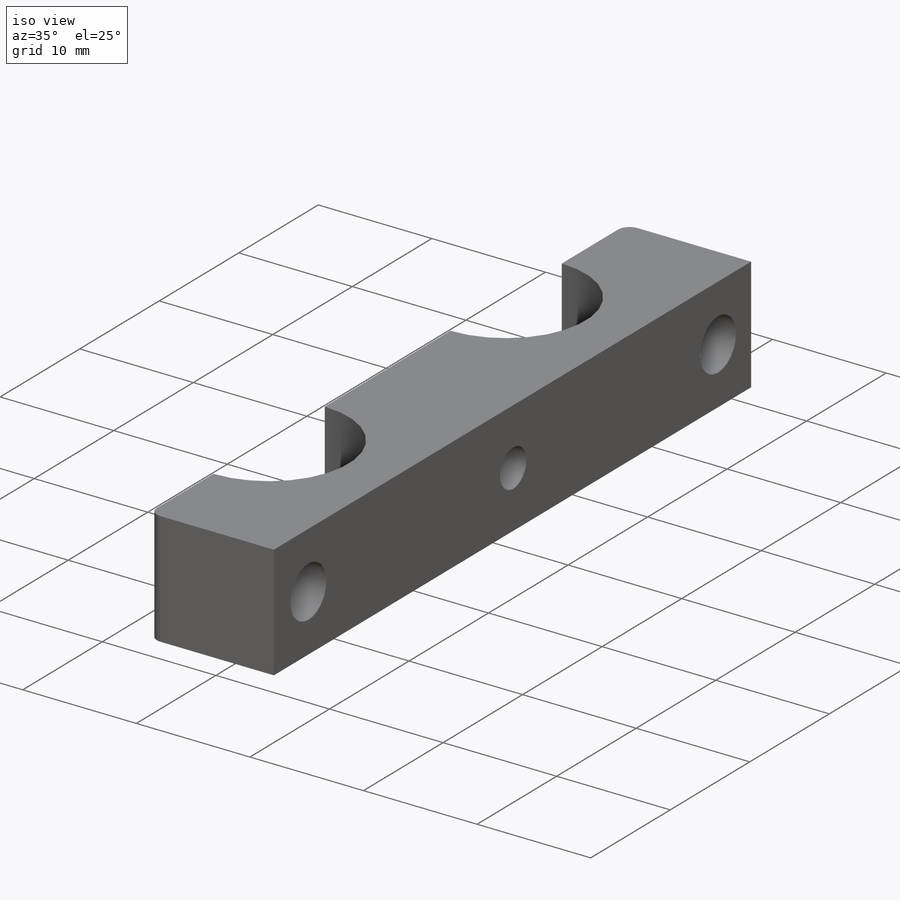
[diagram: iso view]
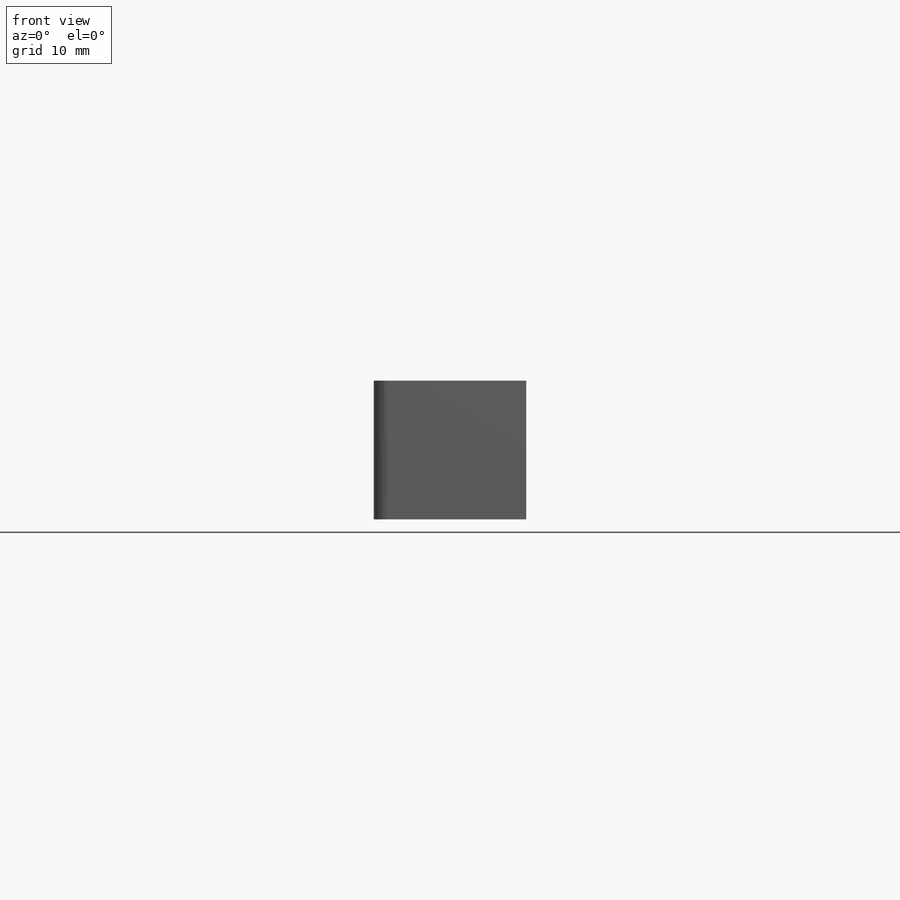
[diagram: front view]
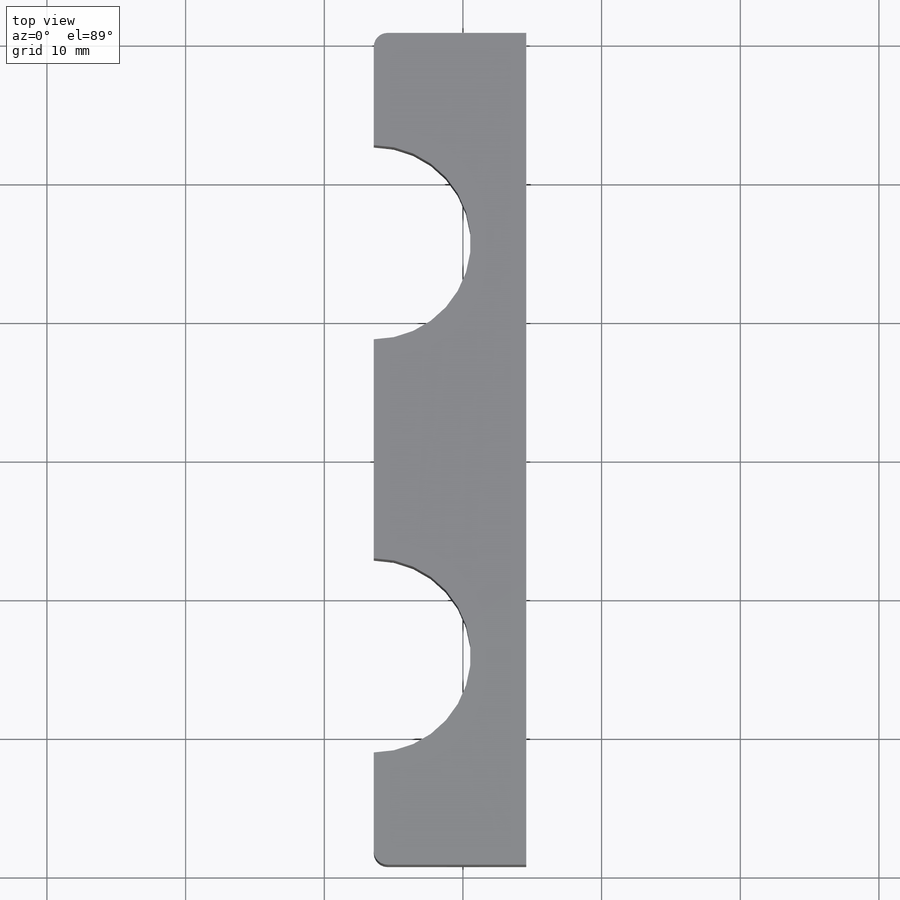
[diagram: top view]
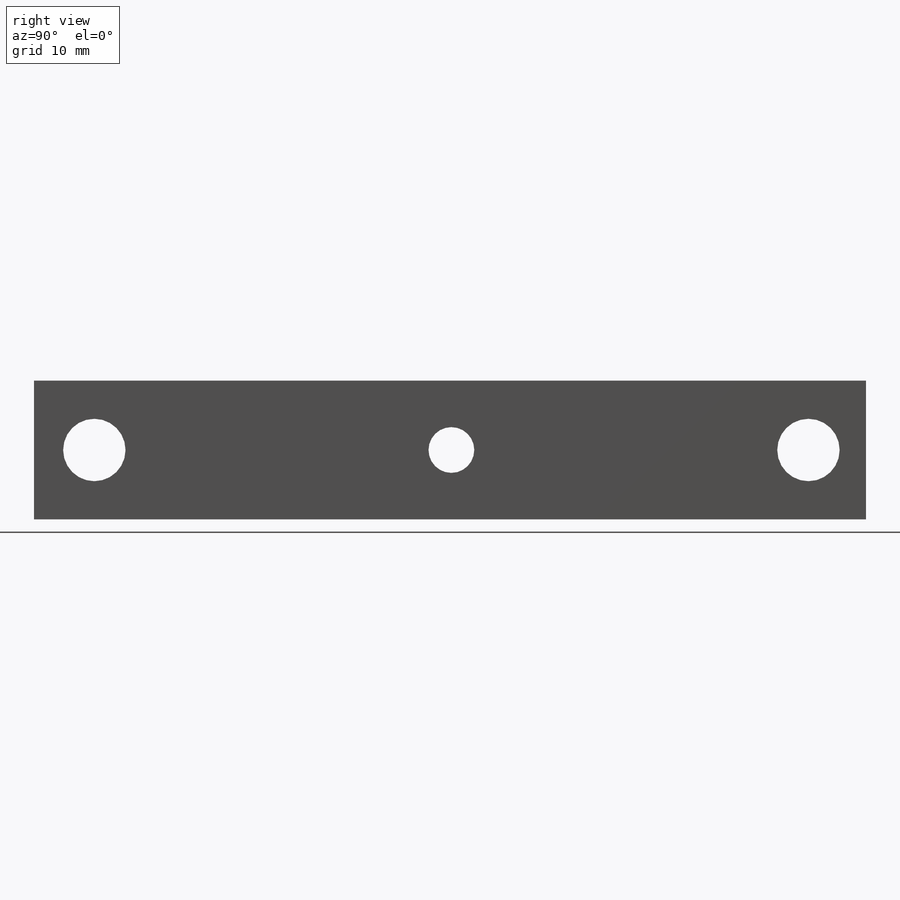
[diagram: right view]
SOLIDWORKS PART (.sldprt)
format: sldprt  version: not decoded by parser v0  size: 386,560 bytes
history: native  units: mm
features: sketch x5, plane x3, hole x2, material x1, extrude x1, fillet x1, thread x1 (+8 scaffold rows collapsed)
feature tree (22):
  scaffold x8  (default folders/planes/origin — collapsed)
  material  "3.1355 (EN-AW 2024)"
  plane  "Спереди"
  plane  "Сверху"
  plane  "Справа"
  sketch  "Эскиз2"  dims[c1.D3=7.0mm c1.D4=7.0mm c1.D1=3.0mm c1.D2=10.0mm c1.D5=8.0mm c1.D6=15.6mm c1.D7=8.0mm c1.D8=15.1mm c1.D9=15.1mm c2.D6=29.8mm c2.D8=11.0mm c2.D9=14.0mm c2.D2=14.0mm c2.D1=60.0mm]
  extrude  "Бобышка-Вытянуть1"  Depth=10mm
  fillet  "Скругление1"  Radius=1mm
  hole  "Отверстие с зазором M41"  [1 undecoded]
  sketch  "Эскиз3"
  sketch  "Эскиз4"  dims[Диаметр отверстия=4.5mm Глубина отверстия=10.999mm Угол заточки сверла=118.0deg]
  hole  "Отверстие обработанное метчиком M4x0.71"  [1 undecoded]
  sketch  "Эскиз5"
  sketch  "Эскиз6"  dims[Диаметр сверла=3.3mm Глубина сверла=10.999mm Угол заточки сверла=118.0deg]
  thread  "Отверстие резьбы1"  Diameter=6mm  [1 undecoded]
decode coverage: 6 of 10 modeling features carry decoded parameters
note: 3 parameter values undecoded
note: suppression state not decoded; provenance and decode notes live in map.json
